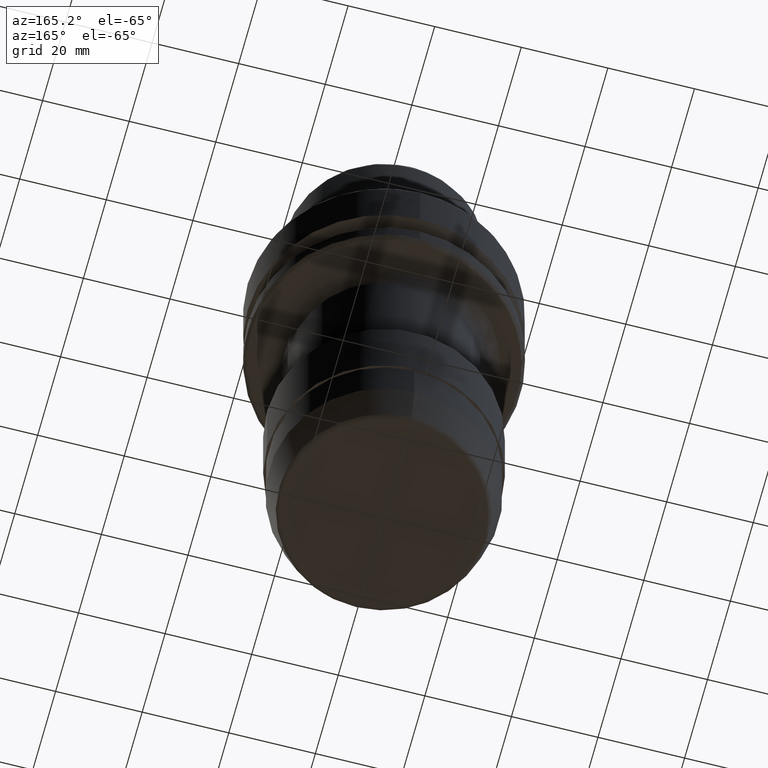
[diagram: clean part render]
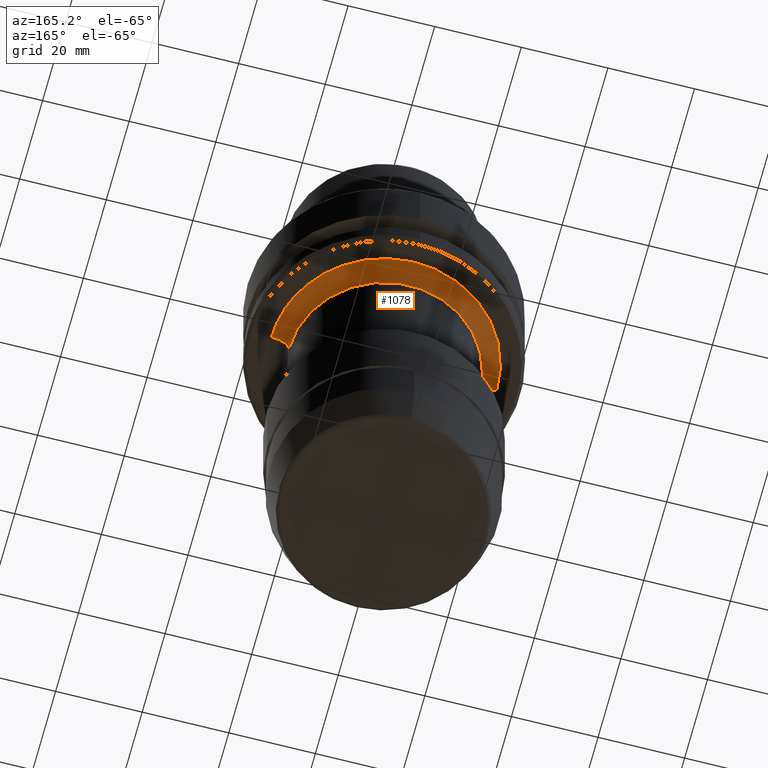
[diagram: same view with one face highlighted and labeled with its STEP entity id]
A machine part, auxiliary view. The second image highlights one B-rep face of the part: STEP entity #1078.
In plain terms, the highlighted face is a freeform B-spline surface patch.
Its self-contained STEP definition (entity closure, byte-faithful):
#46 =( BOUNDED_CURVE ( )  B_SPLINE_CURVE ( 3, ( #1234, #1513, #3538, #1797 ),
 .UNSPECIFIED., .F., .F. ) 
 B_SPLINE_CURVE_WITH_KNOTS ( ( 4, 4 ),
 ( 0.06314145699999937400, 0.9368585429999994900 ),
 .UNSPECIFIED. ) 
 CURVE ( )  GEOMETRIC_REPRESENTATION_ITEM ( )  RATIONAL_B_SPLINE_CURVE ( ( 0.9565783021659932700, 0.7697947703959745500, 0.7697947703959744400, 0.9565783021659927100 ) ) 
 REPRESENTATION_ITEM ( '' )  );
#137 = VERTEX_POINT ( 'NONE', #669 ) ;
#192 = CARTESIAN_POINT ( 'NONE',  ( 26.39933366700000100, 52.79866733300000400, -26.01998333900000700 ) ) ;
#245 = FACE_OUTER_BOUND ( 'NONE', #1323, .T. ) ;
#275 = ORIENTED_EDGE ( 'NONE', *, *, #1990, .T. ) ;
#319 =( BOUNDED_CURVE ( )  B_SPLINE_CURVE ( 3, ( #647, #2345, #2629, #938 ),
 .UNSPECIFIED., .F., .F. ) 
 B_SPLINE_CURVE_WITH_KNOTS ( ( 4, 4 ),
 ( 0.0000000000000000000, 1.000000000000000000 ),
 .UNSPECIFIED. ) 
 CURVE ( )  GEOMETRIC_REPRESENTATION_ITEM ( )  RATIONAL_B_SPLINE_CURVE ( ( 0.9565783021874275600, 0.3188594340624756300, 0.3188594340624756300, 0.9565783021874275600 ) ) 
 REPRESENTATION_ITEM ( '' )  );
#334 = AXIS2_PLACEMENT_3D ( 'NONE', #630, #2611, #917 ) ;
#465 = CARTESIAN_POINT ( 'NONE',  ( -22.01998333900000700, 44.03996667799999900, -30.39933366700000100 ) ) ;
#471 = CARTESIAN_POINT ( 'NONE',  ( -26.39933366700000100, 0.0000000000000000000, -26.01998333900000700 ) ) ;
#630 = CARTESIAN_POINT ( 'NONE',  ( 0.0000000000000000000, 0.0000000000000000000, -29.99999999848498100 ) ) ;
#647 = CARTESIAN_POINT ( 'NONE',  ( -25.99999999559441800, 0.0000000000000000000, -26.00000000004966000 ) ) ;
#669 = CARTESIAN_POINT ( 'NONE',  ( -22.00000000006208000, -2.256137713668642800E-009, -29.99999999886374300 ) ) ;
#709 = CARTESIAN_POINT ( 'NONE',  ( -25.99999999559441800, 0.0000000000000000000, -26.00000000004966000 ) ) ;
#738 = CARTESIAN_POINT ( 'NONE',  ( 23.65685424928637200, 0.0000000000000000000, -26.00000000100477500 ) ) ;
#743 = CARTESIAN_POINT ( 'NONE',  ( 21.74711830900000100, 0.0000000000000000000, -27.67978493899999700 ) ) ;
#843 = ORIENTED_EDGE ( 'NONE', *, *, #3320, .T. ) ;
#917 = DIRECTION ( 'NONE',  ( -1.000000000000000000, 0.0000000000000000000, 0.0000000000000000000 ) ) ;
#919 = CARTESIAN_POINT ( 'NONE',  ( 25.99999999469236300, 0.0000000000000000000, -26.00000000004966000 ) ) ;
#938 = CARTESIAN_POINT ( 'NONE',  ( 25.99999999469236300, 0.0000000000000000000, -26.00000000004966000 ) ) ;
#1026 = VERTEX_POINT ( 'NONE', #709 ) ;
#1039 = CARTESIAN_POINT ( 'NONE',  ( -21.74711830899999800, 43.49423661799999500, -27.67978493900000100 ) ) ;
#1046 = CARTESIAN_POINT ( 'NONE',  ( 25.99999999469236300, 0.0000000000000000000, -26.00000000004966000 ) ) ;
#1078 = ADVANCED_FACE ( 'NONE', ( #245 ), #1311, .F. ) ;
#1234 = CARTESIAN_POINT ( 'NONE',  ( -22.00000000006208000, -2.256137713668642800E-009, -29.99999999886374300 ) ) ;
#1311 =( BOUNDED_SURFACE ( )  B_SPLINE_SURFACE ( 3, 3, ( 
 ( #1583, #3319, #465, #2438 ),
 ( #743, #2735, #1039, #3028 ),
 ( #1317, #3332, #1597, #3616 ),
 ( #1884, #192, #2160, #471 ) ),
 .UNSPECIFIED., .F., .F., .F. ) 
 B_SPLINE_SURFACE_WITH_KNOTS ( ( 4, 4 ),
 ( 4, 4 ),
 ( 0.0000000000000000000, 1.000000000000000000 ),
 ( 0.0000000000000000000, 1.000000000000000000 ),
 .UNSPECIFIED. ) 
 GEOMETRIC_REPRESENTATION_ITEM ( )  RATIONAL_B_SPLINE_SURFACE ( (
 ( 1.000000000000000000, 0.3333333333333330400, 0.3333333333333330400, 1.000000000000000000),
 ( 0.7553208711179720800, 0.2517736237059909900, 0.2517736237059909900, 0.7553208711179720800),
 ( 0.7553208711179720800, 0.2517736237059909900, 0.2517736237059909900, 0.7553208711179720800),
 ( 1.000000000000000000, 0.3333333333333330400, 0.3333333333333330400, 1.000000000000000000) ) ) 
 REPRESENTATION_ITEM ( '' )  SURFACE ( )  );
#1317 = CARTESIAN_POINT ( 'NONE',  ( 23.67978493900000500, 0.0000000000000000000, -25.74711830900000100 ) ) ;
#1323 = EDGE_LOOP ( 'NONE', ( #275, #843, #1420, #1416 ) ) ;
#1416 = ORIENTED_EDGE ( 'NONE', *, *, #3617, .T. ) ;
#1420 = ORIENTED_EDGE ( 'NONE', *, *, #2546, .F. ) ;
#1513 = CARTESIAN_POINT ( 'NONE',  ( -22.00000000100476100, 0.0000000000000000000, -27.65685424928636100 ) ) ;
#1583 = CARTESIAN_POINT ( 'NONE',  ( 22.01998333900000700, 0.0000000000000000000, -30.39933366700000100 ) ) ;
#1597 = CARTESIAN_POINT ( 'NONE',  ( -23.67978493900000500, 47.35956987800000200, -25.74711830899999800 ) ) ;
#1797 = CARTESIAN_POINT ( 'NONE',  ( -25.99999999559441800, 0.0000000000000000000, -26.00000000004966000 ) ) ;
#1884 = CARTESIAN_POINT ( 'NONE',  ( 26.39933366700000100, 0.0000000000000000000, -26.01998333900000700 ) ) ;
#1889 = CARTESIAN_POINT ( 'NONE',  ( 22.00000000006207700, -9.877299127160631300E-010, -29.99999999848497700 ) ) ;
#1990 = EDGE_CURVE ( 'NONE', #1026, #3539, #319, .T. ) ;
#2122 = CARTESIAN_POINT ( 'NONE',  ( 22.00000000006207700, -9.877299127160631300E-010, -29.99999999848497700 ) ) ;
#2160 = CARTESIAN_POINT ( 'NONE',  ( -26.39933366700000100, 52.79866733300000400, -26.01998333900000700 ) ) ;
#2345 = CARTESIAN_POINT ( 'NONE',  ( -25.99999999870136200, 51.99999999654311700, -26.00000000008277100 ) ) ;
#2438 = CARTESIAN_POINT ( 'NONE',  ( -22.01998333900000700, 0.0000000000000000000, -30.39933366700000100 ) ) ;
#2546 = EDGE_CURVE ( 'NONE', #137, #3262, #3377, .T. ) ;
#2611 = DIRECTION ( 'NONE',  ( -0.0000000000000000000, 0.0000000000000000000, -1.000000000000000000 ) ) ;
#2629 = CARTESIAN_POINT ( 'NONE',  ( 25.99999999870136200, 51.99999999654311700, -26.00000000008277100 ) ) ;
#2735 = CARTESIAN_POINT ( 'NONE',  ( 21.74711830899999800, 43.49423661799999500, -27.67978493900000100 ) ) ;
#3028 = CARTESIAN_POINT ( 'NONE',  ( -21.74711830900000100, 0.0000000000000000000, -27.67978493899999700 ) ) ;
#3262 = VERTEX_POINT ( 'NONE', #2122 ) ;
#3319 = CARTESIAN_POINT ( 'NONE',  ( 22.01998333900000700, 44.03996667799999900, -30.39933366700000100 ) ) ;
#3320 = EDGE_CURVE ( 'NONE', #3539, #3262, #3584, .T. ) ;
#3332 = CARTESIAN_POINT ( 'NONE',  ( 23.67978493900000500, 47.35956987800000200, -25.74711830899999800 ) ) ;
#3377 = CIRCLE ( 'NONE', #334, 22.00000000008277100 ) ;
#3538 = CARTESIAN_POINT ( 'NONE',  ( -23.65685424928635800, 0.0000000000000000000, -26.00000000100476100 ) ) ;
#3539 = VERTEX_POINT ( 'NONE', #919 ) ;
#3584 =( BOUNDED_CURVE ( )  B_SPLINE_CURVE ( 3, ( #1046, #738, #3625, #1889 ),
 .UNSPECIFIED., .F., .F. ) 
 B_SPLINE_CURVE_WITH_KNOTS ( ( 4, 4 ),
 ( 0.06314145700000067800, 0.9368585429999984900 ),
 .UNSPECIFIED. ) 
 CURVE ( )  GEOMETRIC_REPRESENTATION_ITEM ( )  RATIONAL_B_SPLINE_CURVE ( ( 0.9565783021659928200, 0.7697947703959747700, 0.7697947703959746600, 0.9565783021659921600 ) ) 
 REPRESENTATION_ITEM ( '' )  );
#3616 = CARTESIAN_POINT ( 'NONE',  ( -23.67978493900000500, 0.0000000000000000000, -25.74711830900000100 ) ) ;
#3617 = EDGE_CURVE ( 'NONE', #137, #1026, #46, .T. ) ;
#3625 = CARTESIAN_POINT ( 'NONE',  ( 22.00000000100477100, 0.0000000000000000000, -27.65685424928635400 ) ) ;